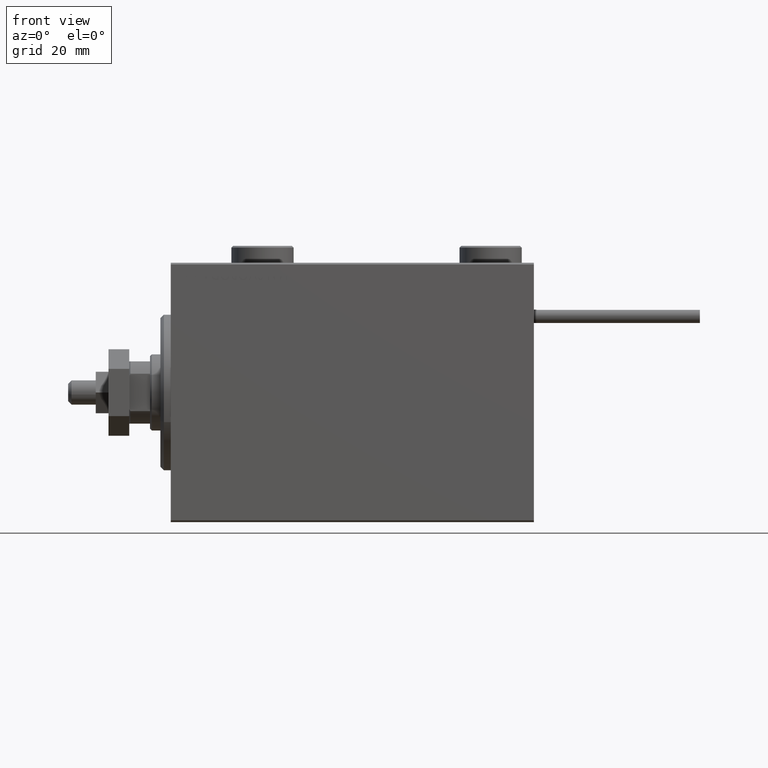
[diagram: clean part render]
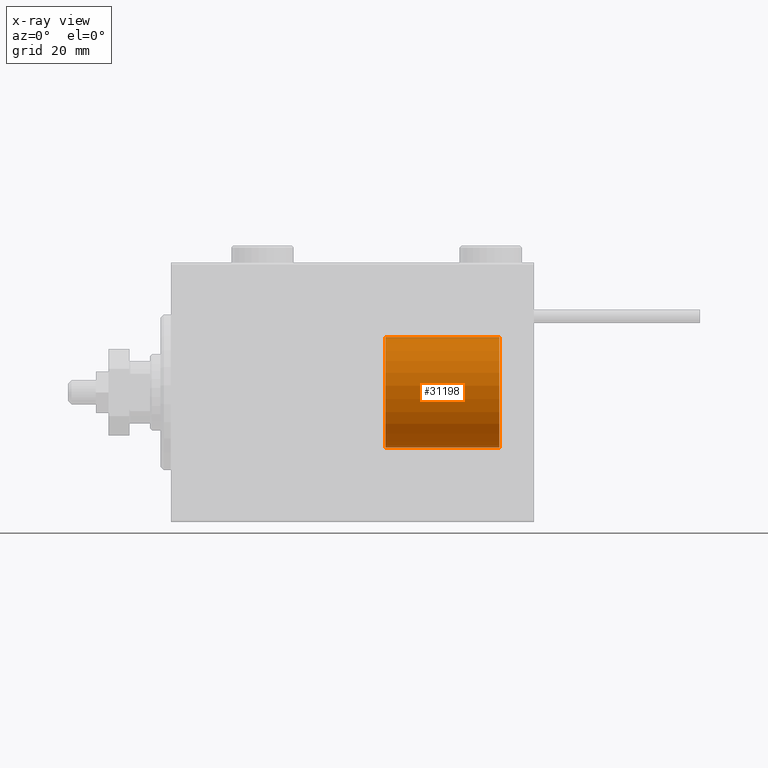
[diagram: x-ray — body ghosted, one internal face saturated and labeled with its STEP entity id]
A machine part, front view, then the same camera in x-ray: the body is ghosted and one INTERNAL B-rep face — a face not visible from any outside direction — is saturated and labeled: STEP entity #31198.
In plain terms, the highlighted cylindrical surface (partial cylindrical patch) has radius 16 mm, axis along (1, -0, -0).
Its self-contained STEP definition (entity closure, byte-faithful):
#85 = ORIENTED_EDGE ( 'NONE', *, *, #41960, .F. ) ;
#348 = DIRECTION ( 'NONE',  ( -0.000000000000000000, -0.000000000000000000, -1.000000000000000000 ) ) ;
#1293 = AXIS2_PLACEMENT_3D ( 'NONE', #15817, #27309, #39043 ) ;
#3700 = ORIENTED_EDGE ( 'NONE', *, *, #22343, .T. ) ;
#4714 = CARTESIAN_POINT ( 'NONE',  ( -16.00000000000000000, 0.000000000000000000, 0.000000000000000000 ) ) ;
#6316 = VERTEX_POINT ( 'NONE', #4714 ) ;
#8718 = EDGE_CURVE ( 'NONE', #38027, #33141, #15431, .T. ) ;
#10326 = AXIS2_PLACEMENT_3D ( 'NONE', #12716, #48928, #17380 ) ;
#10354 = AXIS2_PLACEMENT_3D ( 'NONE', #44779, #28882, #33314 ) ;
#11738 = CARTESIAN_POINT ( 'NONE',  ( -16.00000000000000000, 0.000000000000000000, 33.00000000000000000 ) ) ;
#11987 = CIRCLE ( 'NONE', #10326, 16.00000000000000000 ) ;
#11998 = FACE_OUTER_BOUND ( 'NONE', #33883, .T. ) ;
#12345 = LINE ( 'NONE', #39733, #42268 ) ;
#12716 = CARTESIAN_POINT ( 'NONE',  ( 0.000000000000000000, 0.000000000000000000, 0.000000000000000000 ) ) ;
#15431 = CIRCLE ( 'NONE', #1293, 16.00000000000000000 ) ;
#15817 = CARTESIAN_POINT ( 'NONE',  ( 0.000000000000000000, 0.000000000000000000, 33.00000000000000000 ) ) ;
#17380 = DIRECTION ( 'NONE',  ( 1.000000000000000000, 0.000000000000000000, 0.000000000000000000 ) ) ;
#19119 = CARTESIAN_POINT ( 'NONE',  ( 16.00000000000000000, 1.959434878635765131E-15, 0.000000000000000000 ) ) ;
#22141 = DIRECTION ( 'NONE',  ( -0.000000000000000000, -0.000000000000000000, -1.000000000000000000 ) ) ;
#22343 = EDGE_CURVE ( 'NONE', #38027, #6316, #42734, .T. ) ;
#24770 = ORIENTED_EDGE ( 'NONE', *, *, #30221, .T. ) ;
#25812 = CARTESIAN_POINT ( 'NONE',  ( -16.00000000000000000, 0.000000000000000000, 33.00000000000000000 ) ) ;
#26313 = VERTEX_POINT ( 'NONE', #19119 ) ;
#27309 = DIRECTION ( 'NONE',  ( 0.000000000000000000, 0.000000000000000000, 1.000000000000000000 ) ) ;
#28882 = DIRECTION ( 'NONE',  ( -0.000000000000000000, -0.000000000000000000, -1.000000000000000000 ) ) ;
#30221 = EDGE_CURVE ( 'NONE', #6316, #26313, #11987, .T. ) ;
#31198 = ADVANCED_FACE ( 'NONE', ( #11998 ), #36969, .T. ) ;
#33141 = VERTEX_POINT ( 'NONE', #36283 ) ;
#33314 = DIRECTION ( 'NONE',  ( -1.000000000000000000, 0.000000000000000000, 0.000000000000000000 ) ) ;
#33883 = EDGE_LOOP ( 'NONE', ( #85, #50370, #3700, #24770 ) ) ;
#36283 = CARTESIAN_POINT ( 'NONE',  ( 16.00000000000000000, 1.959434878635765131E-15, 33.00000000000000000 ) ) ;
#36969 = CYLINDRICAL_SURFACE ( 'NONE', #10354, 16.00000000000000000 ) ;
#38027 = VERTEX_POINT ( 'NONE', #11738 ) ;
#39043 = DIRECTION ( 'NONE',  ( 1.000000000000000000, 0.000000000000000000, 0.000000000000000000 ) ) ;
#39733 = CARTESIAN_POINT ( 'NONE',  ( 16.00000000000000000, 1.959434878635765131E-15, 33.00000000000000000 ) ) ;
#41960 = EDGE_CURVE ( 'NONE', #33141, #26313, #12345, .T. ) ;
#42268 = VECTOR ( 'NONE', #348, 1000.000000000000000 ) ;
#42734 = LINE ( 'NONE', #25812, #45772 ) ;
#44779 = CARTESIAN_POINT ( 'NONE',  ( 0.000000000000000000, 0.000000000000000000, 33.00000000000000000 ) ) ;
#45772 = VECTOR ( 'NONE', #22141, 1000.000000000000000 ) ;
#48928 = DIRECTION ( 'NONE',  ( 0.000000000000000000, 0.000000000000000000, 1.000000000000000000 ) ) ;
#50370 = ORIENTED_EDGE ( 'NONE', *, *, #8718, .F. ) ;